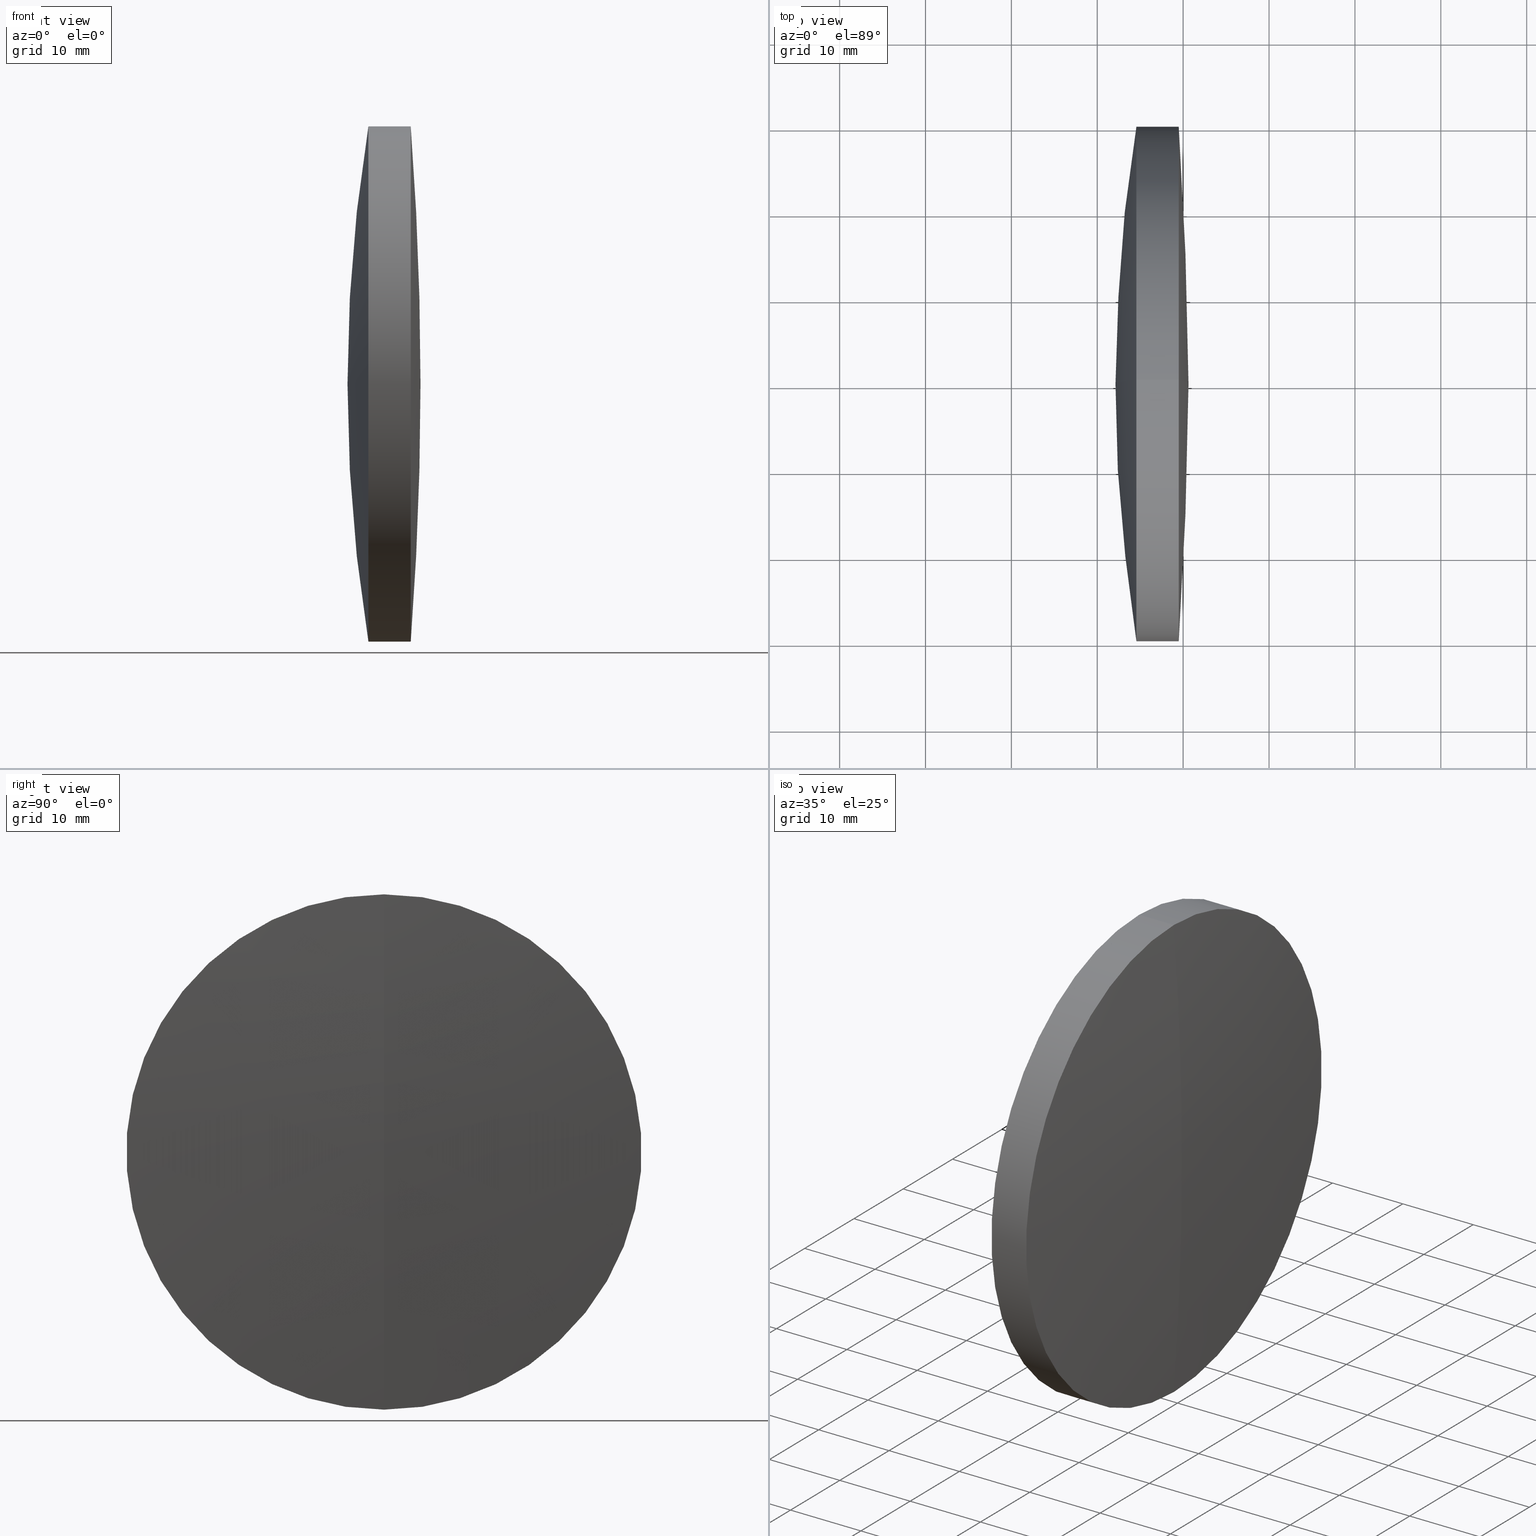
[diagram: canonical four-view strip — front | top / right | iso, engineering-drawing reading convention]
A machine part, canonical four-view strip (front | top / right | iso — engineering-drawing reading convention). The complete STEP part file that produces these views, byte-faithful:
ISO-10303-21;
HEADER;
FILE_DESCRIPTION (( 'STEP AP214' ),
    '1' );
FILE_NAME ('145098.STEP',
    '2019-05-28T02:26:08',
    ( 'user' ),
    ( '΢���й�' ),
    'SwSTEP 2.0',
    'SolidWorks 2016',
    '' );
FILE_SCHEMA (( 'AUTOMOTIVE_DESIGN' ));
ENDSEC;

DATA;
#1 = DIRECTION ( 'NONE',  ( 0.0000000000000000000, 0.0000000000000000000, 1.000000000000000000 ) ) ;
#2 = ORIENTED_EDGE ( 'NONE', *, *, #171, .F. ) ;
#3 = EDGE_CURVE ( 'NONE', #259, #210, #242, .T. ) ;
#4 = ORIENTED_EDGE ( 'NONE', *, *, #171, .T. ) ;
#5 = CARTESIAN_POINT ( 'NONE',  ( -55.97737444877426300, 0.0000000000000000000, 0.0000000000000000000 ) ) ;
#6 = DIRECTION ( 'NONE',  ( 0.0000000000000000000, 0.0000000000000000000, 1.000000000000000000 ) ) ;
#7 = EDGE_CURVE ( 'NONE', #15, #227, #206, .T. ) ;
#8 = EDGE_LOOP ( 'NONE', ( #78, #44, #138, #329 ) ) ;
#9 =( GEOMETRIC_REPRESENTATION_CONTEXT ( 3 ) GLOBAL_UNCERTAINTY_ASSIGNED_CONTEXT ( ( #257 ) ) GLOBAL_UNIT_ASSIGNED_CONTEXT ( ( #147, #79, #107 ) ) REPRESENTATION_CONTEXT ( 'NONE', 'WORKASPACE' ) );
#10 = ADVANCED_FACE ( 'NONE', ( #256 ), #296, .F. ) ;
#11 = AXIS2_PLACEMENT_3D ( 'NONE', #67, #30, #281 ) ;
#12 = COLOUR_RGB ( '',1.000000000000000000, 1.000000000000000000, 1.000000000000000000 ) ;
#13 = APPLICATION_PROTOCOL_DEFINITION ( 'draft international standard', 'automotive_design', 1998, #37 ) ;
#14 = ORIENTED_EDGE ( 'NONE', *, *, #132, .F. ) ;
#15 = VERTEX_POINT ( 'NONE', #129 ) ;
#16 = DIRECTION ( 'NONE',  ( -1.000000000000000000, -0.0000000000000000000, -0.0000000000000000000 ) ) ;
#17 = EDGE_CURVE ( 'NONE', #201, #33, #265, .T. ) ;
#18 = CARTESIAN_POINT ( 'NONE',  ( 216.1226255512254100, 0.0000000000000000000, 0.0000000000000000000 ) ) ;
#19 = SURFACE_STYLE_FILL_AREA ( #136 ) ;
#20 = DIRECTION ( 'NONE',  ( 0.0000000000000000000, 0.0000000000000000000, -1.000000000000000000 ) ) ;
#21 = CARTESIAN_POINT ( 'NONE',  ( 518.2226255512254100, 0.0000000000000000000, -3.517525629549590600E-015 ) ) ;
#22 = CARTESIAN_POINT ( 'NONE',  ( -0.5519199926577972300, 3.673940397442057600E-015, -29.99999999999998600 ) ) ;
#23 = CIRCLE ( 'NONE', #49, 186.1000000000000200 ) ;
#24 = MANIFOLD_SOLID_BREP ( '��ת1', #166 ) ;
#25 = EDGE_LOOP ( 'NONE', ( #205, #181, #287 ) ) ;
#26 = DIRECTION ( 'NONE',  ( 0.0000000000000000000, 0.0000000000000000000, 1.000000000000000000 ) ) ;
#27 = STYLED_ITEM ( 'NONE', ( #59 ), #131 ) ;
#28 = AXIS2_PLACEMENT_3D ( 'NONE', #120, #16, #295 ) ;
#29 = CYLINDRICAL_SURFACE ( 'NONE', #237, 29.99999999999999600 ) ;
#30 = DIRECTION ( 'NONE',  ( 0.0000000000000000000, 1.000000000000000000, 0.0000000000000000000 ) ) ;
#31 = CIRCLE ( 'NONE', #235, 29.99999999999995000 ) ;
#32 = CYLINDRICAL_SURFACE ( 'NONE', #312, 29.99999999999998600 ) ;
#33 = VERTEX_POINT ( 'NONE', #77 ) ;
#34 = ORIENTED_EDGE ( 'NONE', *, *, #241, .T. ) ;
#35 = PRODUCT ( '145098', '145098', '', ( #102 ) ) ;
#36 = FACE_OUTER_BOUND ( 'NONE', #174, .T. ) ;
#37 = APPLICATION_CONTEXT ( 'automotive_design' ) ;
#38 = ADVANCED_FACE ( 'NONE', ( #106 ), #73, .T. ) ;
#39 = DIRECTION ( 'NONE',  ( 0.0000000000000000000, 1.000000000000000000, 0.0000000000000000000 ) ) ;
#40 = SURFACE_STYLE_FILL_AREA ( #186 ) ;
#41 = ORIENTED_EDGE ( 'NONE', *, *, #47, .T. ) ;
#42 = CARTESIAN_POINT ( 'NONE',  ( 339.4863533443066800, 0.0000000000000000000, 0.0000000000000000000 ) ) ;
#43 = CIRCLE ( 'NONE', #64, 123.0000000000003000 ) ;
#44 = ORIENTED_EDGE ( 'NONE', *, *, #191, .T. ) ;
#45 = STYLED_ITEM ( 'NONE', ( #90 ), #112 ) ;
#46 = SURFACE_STYLE_USAGE ( .BOTH. , #290 ) ;
#47 = EDGE_CURVE ( 'NONE', #15, #231, #92, .T. ) ;
#48 = DIRECTION ( 'NONE',  ( 0.0000000000000000000, 0.0000000000000000000, 1.000000000000000000 ) ) ;
#49 = AXIS2_PLACEMENT_3D ( 'NONE', #274, #76, #269 ) ;
#50 = FILL_AREA_STYLE ('',( #347 ) ) ;
#51 = CARTESIAN_POINT ( 'NONE',  ( 124.5233095260452400, 0.0000000000000000000, 0.0000000000000000000 ) ) ;
#52 = VERTEX_POINT ( 'NONE', #142 ) ;
#53 = VERTEX_POINT ( 'NONE', #98 ) ;
#54 = AXIS2_PLACEMENT_3D ( 'NONE', #21, #100, #207 ) ;
#55 = FACE_OUTER_BOUND ( 'NONE', #345, .T. ) ;
#56 = CYLINDRICAL_SURFACE ( 'NONE', #224, 29.99999999999999600 ) ;
#57 = EDGE_CURVE ( 'NONE', #113, #63, #80, .T. ) ;
#58 = UNCERTAINTY_MEASURE_WITH_UNIT (LENGTH_MEASURE( 1.000000000000000100E-005 ), #192, 'distance_accuracy_value', 'NONE');
#59 = PRESENTATION_STYLE_ASSIGNMENT (( #127 ) ) ;
#60 = PRESENTATION_LAYER_ASSIGNMENT (  '', '', ( #45 ) ) ;
#61 = DIRECTION ( 'NONE',  ( -1.000000000000000000, -0.0000000000000000000, -0.0000000000000000000 ) ) ;
#62 = CIRCLE ( 'NONE', #141, 29.99999999999995000 ) ;
#63 = VERTEX_POINT ( 'NONE', #140 ) ;
#64 = AXIS2_PLACEMENT_3D ( 'NONE', #165, #334, #20 ) ;
#65 = CARTESIAN_POINT ( 'NONE',  ( 335.4079976636520000, 3.673940397442059200E-015, -29.99999999999999600 ) ) ;
#66 = DIRECTION ( 'NONE',  ( -1.000000000000000000, -0.0000000000000000000, -0.0000000000000000000 ) ) ;
#67 = CARTESIAN_POINT ( 'NONE',  ( 518.2226255512254100, 0.0000000000000000000, -3.517525629549590600E-015 ) ) ;
#68 = FACE_OUTER_BOUND ( 'NONE', #8, .T. ) ;
#69 = CLOSED_SHELL ( 'NONE', ( #204, #38, #10, #184, #255, #187 ) ) ;
#70 = DIRECTION ( 'NONE',  ( 0.0000000000000000000, 0.0000000000000000000, 1.000000000000000000 ) ) ;
#71 = FILL_AREA_STYLE_COLOUR ( '', #12 ) ;
#72 = CARTESIAN_POINT ( 'NONE',  ( -0.5519199926577972300, 0.0000000000000000000, 0.0000000000000000000 ) ) ;
#73 = CYLINDRICAL_SURFACE ( 'NONE', #325, 29.99999999999998600 ) ;
#74 = ADVANCED_FACE ( 'NONE', ( #68 ), #56, .T. ) ;
#75 = CARTESIAN_POINT ( 'NONE',  ( 335.4079976636520000, 0.0000000000000000000, 30.00000000000001100 ) ) ;
#76 = DIRECTION ( 'NONE',  ( 0.0000000000000000000, -1.000000000000000000, 0.0000000000000000000 ) ) ;
#77 = CARTESIAN_POINT ( 'NONE',  ( 332.1226255512253800, 0.0000000000000000000, 7.877812836516531800E-015 ) ) ;
#78 = ORIENTED_EDGE ( 'NONE', *, *, #164, .T. ) ;
#79 =( NAMED_UNIT ( * ) PLANE_ANGLE_UNIT ( ) SI_UNIT ( $, .RADIAN. ) );
#80 = CIRCLE ( 'NONE', #202, 30.00000000000002500 ) ;
#81 = CARTESIAN_POINT ( 'NONE',  ( -55.97737444877426300, 0.0000000000000000000, 0.0000000000000000000 ) ) ;
#82 =( NAMED_UNIT ( * ) PLANE_ANGLE_UNIT ( ) SI_UNIT ( $, .RADIAN. ) );
#83 = DIRECTION ( 'NONE',  ( -1.000000000000000000, -0.0000000000000000000, -0.0000000000000000000 ) ) ;
#84 = MECHANICAL_DESIGN_GEOMETRIC_PRESENTATION_REPRESENTATION (  '', ( #45 ), #101 ) ;
#85 = ORIENTED_EDGE ( 'NONE', *, *, #7, .F. ) ;
#86 = EDGE_CURVE ( 'NONE', #227, #231, #62, .T. ) ;
#87 = VERTEX_POINT ( 'NONE', #343 ) ;
#88 = ORIENTED_EDGE ( 'NONE', *, *, #57, .F. ) ;
#89 = AXIS2_PLACEMENT_3D ( 'NONE', #251, #220, #104 ) ;
#90 = PRESENTATION_STYLE_ASSIGNMENT (( #219 ) ) ;
#91 = AXIS2_PLACEMENT_3D ( 'NONE', #189, #133, #134 ) ;
#92 = CIRCLE ( 'NONE', #244, 396.6000000000000200 ) ;
#93 = ADVANCED_FACE ( 'NONE', ( #302 ), #29, .T. ) ;
#94 = CIRCLE ( 'NONE', #28, 30.00000000000002500 ) ;
#95 = SPHERICAL_SURFACE ( 'NONE', #229, 123.0000000000003000 ) ;
#96 =( NAMED_UNIT ( * ) SI_UNIT ( $, .STERADIAN. ) SOLID_ANGLE_UNIT ( ) );
#97 = EDGE_LOOP ( 'NONE', ( #85, #41, #230 ) ) ;
#98 = CARTESIAN_POINT ( 'NONE',  ( 339.1226255512257200, 0.0000000000000000000, 7.531577814756241600E-015 ) ) ;
#99 = DIRECTION ( 'NONE',  ( 0.0000000000000000000, 1.000000000000000000, 0.0000000000000000000 ) ) ;
#100 = DIRECTION ( 'NONE',  ( 0.0000000000000000000, 1.000000000000000000, 0.0000000000000000000 ) ) ;
#101 =( GEOMETRIC_REPRESENTATION_CONTEXT ( 3 ) GLOBAL_UNCERTAINTY_ASSIGNED_CONTEXT ( ( #58 ) ) GLOBAL_UNIT_ASSIGNED_CONTEXT ( ( #192, #338, #335 ) ) REPRESENTATION_CONTEXT ( 'NONE', 'WORKASPACE' ) );
#102 = PRODUCT_CONTEXT ( 'NONE', #162, 'mechanical' ) ;
#103 = DIRECTION ( 'NONE',  ( 0.0000000000000000000, 0.0000000000000000000, 1.000000000000000000 ) ) ;
#104 = DIRECTION ( 'NONE',  ( 0.0000000000000000000, -1.224646799147353200E-016, 1.000000000000000000 ) ) ;
#105 = SPHERICAL_SURFACE ( 'NONE', #54, 186.1000000000000200 ) ;
#106 = FACE_OUTER_BOUND ( 'NONE', #169, .T. ) ;
#107 =( NAMED_UNIT ( * ) SI_UNIT ( $, .STERADIAN. ) SOLID_ANGLE_UNIT ( ) );
#108 = EDGE_LOOP ( 'NONE', ( #144, #278, #200 ) ) ;
#109 = DIRECTION ( 'NONE',  ( 0.0000000000000000000, 0.0000000000000000000, 1.000000000000000000 ) ) ;
#110 = AXIS2_PLACEMENT_3D ( 'NONE', #291, #236, #1 ) ;
#111 = CIRCLE ( 'NONE', #110, 29.99999999999999600 ) ;
#112 = ADVANCED_BREP_SHAPE_REPRESENTATION ( '145098', ( #24, #131, #214 ), #342 ) ;
#113 = VERTEX_POINT ( 'NONE', #75 ) ;
#114 = VECTOR ( 'NONE', #176, 1000.000000000000000 ) ;
#115 = ORIENTED_EDGE ( 'NONE', *, *, #86, .T. ) ;
#116 = ORIENTED_EDGE ( 'NONE', *, *, #241, .F. ) ;
#117 = ADVANCED_FACE ( 'NONE', ( #36 ), #105, .T. ) ;
#118 = PRODUCT_DEFINITION_SHAPE ( 'NONE', 'NONE',  #143 ) ;
#119 = DIRECTION ( 'NONE',  ( -1.000000000000000000, -0.0000000000000000000, -0.0000000000000000000 ) ) ;
#120 = CARTESIAN_POINT ( 'NONE',  ( 335.4079976636520000, 0.0000000000000000000, 0.0000000000000000000 ) ) ;
#121 = ORIENTED_EDGE ( 'NONE', *, *, #156, .F. ) ;
#122 = DIRECTION ( 'NONE',  ( 0.0000000000000000000, 1.000000000000000000, 0.0000000000000000000 ) ) ;
#123 = DIRECTION ( 'NONE',  ( 0.0000000000000000000, -1.000000000000000000, 0.0000000000000000000 ) ) ;
#124 = AXIS2_PLACEMENT_3D ( 'NONE', #81, #247, #26 ) ;
#125 = LINE ( 'NONE', #275, #114 ) ;
#126 = ORIENTED_EDGE ( 'NONE', *, *, #203, .T. ) ;
#127 = SURFACE_STYLE_USAGE ( .BOTH. , #317 ) ;
#128 = ORIENTED_EDGE ( 'NONE', *, *, #288, .T. ) ;
#129 = CARTESIAN_POINT ( 'NONE',  ( 340.6226255512257200, 0.0000000000000000000, 2.428474602709201300E-014 ) ) ;
#130 = CARTESIAN_POINT ( 'NONE',  ( 216.1226255512254100, 0.0000000000000000000, 0.0000000000000000000 ) ) ;
#131 = MANIFOLD_SOLID_BREP ( '��ת3', #69 ) ;
#132 = EDGE_CURVE ( 'NONE', #227, #63, #306, .T. ) ;
#133 = DIRECTION ( 'NONE',  ( -0.0000000000000000000, 1.000000000000000000, 1.224646799147353200E-016 ) ) ;
#134 = DIRECTION ( 'NONE',  ( 0.0000000000000000000, -1.224646799147353500E-016, 1.000000000000000000 ) ) ;
#135 = CIRCLE ( 'NONE', #321, 29.99999999999999600 ) ;
#136 = FILL_AREA_STYLE ('',( #179 ) ) ;
#137 = EDGE_LOOP ( 'NONE', ( #264, #126, #320 ) ) ;
#138 = ORIENTED_EDGE ( 'NONE', *, *, #324, .F. ) ;
#139 = DIRECTION ( 'NONE',  ( 0.0000000000000000000, -1.000000000000000000, 0.0000000000000000000 ) ) ;
#140 = CARTESIAN_POINT ( 'NONE',  ( 335.4079976636520000, 3.673940397442060800E-015, -30.00000000000001100 ) ) ;
#141 = AXIS2_PLACEMENT_3D ( 'NONE', #246, #183, #282 ) ;
#142 = CARTESIAN_POINT ( 'NONE',  ( 335.4079976636520000, 0.0000000000000000000, 29.99999999999999600 ) ) ;
#143 = PRODUCT_DEFINITION ( 'δ֪', '', #154, #326 ) ;
#144 = ORIENTED_EDGE ( 'NONE', *, *, #284, .F. ) ;
#145 = ORIENTED_EDGE ( 'NONE', *, *, #17, .F. ) ;
#146 = AXIS2_PLACEMENT_3D ( 'NONE', #226, #83, #70 ) ;
#147 =( LENGTH_UNIT ( ) NAMED_UNIT ( * ) SI_UNIT ( .MILLI., .METRE. ) );
#148 = DIRECTION ( 'NONE',  ( -1.000000000000000000, -0.0000000000000000000, -0.0000000000000000000 ) ) ;
#149 = ORIENTED_EDGE ( 'NONE', *, *, #47, .F. ) ;
#150 = CARTESIAN_POINT ( 'NONE',  ( 216.1226255512254100, 0.0000000000000000000, 0.0000000000000000000 ) ) ;
#151 = CARTESIAN_POINT ( 'NONE',  ( 0.0000000000000000000, 0.0000000000000000000, 0.0000000000000000000 ) ) ;
#152 = CARTESIAN_POINT ( 'NONE',  ( 124.5233095260452400, 0.0000000000000000000, 0.0000000000000000000 ) ) ;
#153 =( LENGTH_UNIT ( ) NAMED_UNIT ( * ) SI_UNIT ( .MILLI., .METRE. ) );
#154 = PRODUCT_DEFINITION_FORMATION_WITH_SPECIFIED_SOURCE ( '�κ�', '', #35, .NOT_KNOWN. ) ;
#155 = PRESENTATION_STYLE_ASSIGNMENT (( #46 ) ) ;
#156 = EDGE_CURVE ( 'NONE', #201, #87, #172, .T. ) ;
#157 = CARTESIAN_POINT ( 'NONE',  ( 216.1226255512254100, 0.0000000000000000000, 0.0000000000000000000 ) ) ;
#158 = AXIS2_PLACEMENT_3D ( 'NONE', #294, #139, #285 ) ;
#159 = DIRECTION ( 'NONE',  ( 0.0000000000000000000, 1.000000000000000000, 0.0000000000000000000 ) ) ;
#160 = ORIENTED_EDGE ( 'NONE', *, *, #284, .T. ) ;
#161 = ORIENTED_EDGE ( 'NONE', *, *, #197, .T. ) ;
#162 = APPLICATION_CONTEXT ( 'automotive_design' ) ;
#163 =( GEOMETRIC_REPRESENTATION_CONTEXT ( 3 ) GLOBAL_UNCERTAINTY_ASSIGNED_CONTEXT ( ( #217 ) ) GLOBAL_UNIT_ASSIGNED_CONTEXT ( ( #310, #249, #96 ) ) REPRESENTATION_CONTEXT ( 'NONE', 'WORKASPACE' ) );
#164 = EDGE_CURVE ( 'NONE', #52, #210, #168, .T. ) ;
#165 = CARTESIAN_POINT ( 'NONE',  ( 216.1226255512254100, 0.0000000000000000000, 0.0000000000000000000 ) ) ;
#166 = CLOSED_SHELL ( 'NONE', ( #271, #74, #117, #332, #93, #304 ) ) ;
#167 = MECHANICAL_DESIGN_GEOMETRIC_PRESENTATION_REPRESENTATION (  '', ( #243 ), #9 ) ;
#168 = CIRCLE ( 'NONE', #146, 29.99999999999999600 ) ;
#169 = EDGE_LOOP ( 'NONE', ( #4, #250, #88, #194 ) ) ;
#170 = EDGE_CURVE ( 'NONE', #63, #113, #94, .T. ) ;
#171 = EDGE_CURVE ( 'NONE', #231, #227, #31, .T. ) ;
#172 = CIRCLE ( 'NONE', #283, 29.99999999999999600 ) ;
#173 = DIRECTION ( 'NONE',  ( -1.000000000000000000, -0.0000000000000000000, -0.0000000000000000000 ) ) ;
#174 = EDGE_LOOP ( 'NONE', ( #307, #240, #116 ) ) ;
#175 = CARTESIAN_POINT ( 'NONE',  ( -0.5519199926577972300, 0.0000000000000000000, 0.0000000000000000000 ) ) ;
#176 = DIRECTION ( 'NONE',  ( -1.000000000000000000, -0.0000000000000000000, -0.0000000000000000000 ) ) ;
#177 = CARTESIAN_POINT ( 'NONE',  ( 339.4863533443066800, 0.0000000000000000000, 29.99999999999995000 ) ) ;
#178 = COLOUR_RGB ( '',1.000000000000000000, 1.000000000000000000, 1.000000000000000000 ) ;
#179 = FILL_AREA_STYLE_COLOUR ( '', #178 ) ;
#180 = PRESENTATION_LAYER_ASSIGNMENT (  '', '', ( #27 ) ) ;
#181 = ORIENTED_EDGE ( 'NONE', *, *, #3, .T. ) ;
#182 = APPLICATION_PROTOCOL_DEFINITION ( 'draft international standard', 'automotive_design', 1998, #162 ) ;
#183 = DIRECTION ( 'NONE',  ( -1.000000000000000000, -0.0000000000000000000, -0.0000000000000000000 ) ) ;
#184 = ADVANCED_FACE ( 'NONE', ( #55 ), #253, .F. ) ;
#185 = AXIS2_PLACEMENT_3D ( 'NONE', #341, #122, #215 ) ;
#186 = FILL_AREA_STYLE ('',( #71 ) ) ;
#187 = ADVANCED_FACE ( 'NONE', ( #248 ), #328, .T. ) ;
#188 = SPHERICAL_SURFACE ( 'NONE', #124, 396.6000000000000200 ) ;
#189 = CARTESIAN_POINT ( 'NONE',  ( 216.1226255512254100, 0.0000000000000000000, 0.0000000000000000000 ) ) ;
#190 = ORIENTED_EDGE ( 'NONE', *, *, #327, .T. ) ;
#191 = EDGE_CURVE ( 'NONE', #210, #201, #125, .T. ) ;
#192 =( LENGTH_UNIT ( ) NAMED_UNIT ( * ) SI_UNIT ( .MILLI., .METRE. ) );
#193 = CIRCLE ( 'NONE', #158, 123.0000000000003000 ) ;
#194 = ORIENTED_EDGE ( 'NONE', *, *, #197, .F. ) ;
#195 = CARTESIAN_POINT ( 'NONE',  ( 518.2226255512254100, 0.0000000000000000000, -3.517525629549590600E-015 ) ) ;
#196 = EDGE_LOOP ( 'NONE', ( #149, #245, #2 ) ) ;
#197 = EDGE_CURVE ( 'NONE', #231, #113, #331, .T. ) ;
#198 = ORIENTED_EDGE ( 'NONE', *, *, #57, .T. ) ;
#199 = FACE_OUTER_BOUND ( 'NONE', #209, .T. ) ;
#200 = ORIENTED_EDGE ( 'NONE', *, *, #170, .T. ) ;
#201 = VERTEX_POINT ( 'NONE', #254 ) ;
#202 = AXIS2_PLACEMENT_3D ( 'NONE', #318, #260, #6 ) ;
#203 = EDGE_CURVE ( 'NONE', #259, #52, #43, .T. ) ;
#204 = ADVANCED_FACE ( 'NONE', ( #333 ), #188, .T. ) ;
#205 = ORIENTED_EDGE ( 'NONE', *, *, #203, .F. ) ;
#206 = CIRCLE ( 'NONE', #89, 396.6000000000000200 ) ;
#207 = DIRECTION ( 'NONE',  ( 0.0000000000000000000, 0.0000000000000000000, 1.000000000000000000 ) ) ;
#208 = SPHERICAL_SURFACE ( 'NONE', #300, 123.0000000000003000 ) ;
#209 = EDGE_LOOP ( 'NONE', ( #14, #115, #161, #340 ) ) ;
#210 = VERTEX_POINT ( 'NONE', #65 ) ;
#211 = DIRECTION ( 'NONE',  ( -0.0000000000000000000, 1.000000000000000000, 1.224646799147353200E-016 ) ) ;
#212 = FACE_OUTER_BOUND ( 'NONE', #137, .T. ) ;
#213 = DIRECTION ( 'NONE',  ( 0.0000000000000000000, -1.224646799147353500E-016, 1.000000000000000000 ) ) ;
#214 = AXIS2_PLACEMENT_3D ( 'NONE', #151, #346, #315 ) ;
#215 = DIRECTION ( 'NONE',  ( 0.0000000000000000000, 0.0000000000000000000, 1.000000000000000000 ) ) ;
#216 = DIRECTION ( 'NONE',  ( -1.000000000000000000, -0.0000000000000000000, -0.0000000000000000000 ) ) ;
#217 = UNCERTAINTY_MEASURE_WITH_UNIT (LENGTH_MEASURE( 1.000000000000000100E-005 ), #310, 'distance_accuracy_value', 'NONE');
#218 = FACE_OUTER_BOUND ( 'NONE', #25, .T. ) ;
#219 = SURFACE_STYLE_USAGE ( .BOTH. , #292 ) ;
#220 = DIRECTION ( 'NONE',  ( -0.0000000000000000000, 1.000000000000000000, 1.224646799147353200E-016 ) ) ;
#221 = CARTESIAN_POINT ( 'NONE',  ( 339.1226255512257200, 0.0000000000000000000, 7.531577814756241600E-015 ) ) ;
#222 = EDGE_LOOP ( 'NONE', ( #330, #190, #128, #121 ) ) ;
#223 = DIRECTION ( 'NONE',  ( 0.0000000000000000000, 0.0000000000000000000, 1.000000000000000000 ) ) ;
#224 = AXIS2_PLACEMENT_3D ( 'NONE', #51, #277, #48 ) ;
#225 = DIRECTION ( 'NONE',  ( 0.0000000000000000000, -1.224646799147353000E-016, 1.000000000000000000 ) ) ;
#226 = CARTESIAN_POINT ( 'NONE',  ( 335.4079976636520000, 0.0000000000000000000, 0.0000000000000000000 ) ) ;
#227 = VERTEX_POINT ( 'NONE', #262 ) ;
#228 = UNCERTAINTY_MEASURE_WITH_UNIT (LENGTH_MEASURE( 1.000000000000000100E-005 ), #153, 'distance_accuracy_value', 'NONE');
#229 = AXIS2_PLACEMENT_3D ( 'NONE', #157, #322, #286 ) ;
#230 = ORIENTED_EDGE ( 'NONE', *, *, #86, .F. ) ;
#231 = VERTEX_POINT ( 'NONE', #177 ) ;
#232 =( NAMED_UNIT ( * ) SI_UNIT ( $, .STERADIAN. ) SOLID_ANGLE_UNIT ( ) );
#233 = DIRECTION ( 'NONE',  ( 0.0000000000000000000, 0.0000000000000000000, 1.000000000000000000 ) ) ;
#234 = CARTESIAN_POINT ( 'NONE',  ( 334.5565971191825300, 0.0000000000000000000, 0.0000000000000000000 ) ) ;
#235 = AXIS2_PLACEMENT_3D ( 'NONE', #42, #66, #233 ) ;
#236 = DIRECTION ( 'NONE',  ( -1.000000000000000000, -0.0000000000000000000, -0.0000000000000000000 ) ) ;
#237 = AXIS2_PLACEMENT_3D ( 'NONE', #152, #314, #308 ) ;
#238 = DIRECTION ( 'NONE',  ( 0.0000000000000000000, 0.0000000000000000000, -1.000000000000000000 ) ) ;
#239 = VECTOR ( 'NONE', #272, 1000.000000000000000 ) ;
#240 = ORIENTED_EDGE ( 'NONE', *, *, #17, .T. ) ;
#241 = EDGE_CURVE ( 'NONE', #87, #33, #23, .T. ) ;
#242 = CIRCLE ( 'NONE', #301, 123.0000000000003000 ) ;
#243 = STYLED_ITEM ( 'NONE', ( #155 ), #24 ) ;
#244 = AXIS2_PLACEMENT_3D ( 'NONE', #5, #123, #238 ) ;
#245 = ORIENTED_EDGE ( 'NONE', *, *, #7, .T. ) ;
#246 = CARTESIAN_POINT ( 'NONE',  ( 339.4863533443066800, 0.0000000000000000000, 0.0000000000000000000 ) ) ;
#247 = DIRECTION ( 'NONE',  ( 0.0000000000000000000, 1.000000000000000000, 0.0000000000000000000 ) ) ;
#248 = FACE_OUTER_BOUND ( 'NONE', #97, .T. ) ;
#249 =( NAMED_UNIT ( * ) PLANE_ANGLE_UNIT ( ) SI_UNIT ( $, .RADIAN. ) );
#250 = ORIENTED_EDGE ( 'NONE', *, *, #132, .T. ) ;
#251 = CARTESIAN_POINT ( 'NONE',  ( -55.97737444877426300, 0.0000000000000000000, 0.0000000000000000000 ) ) ;
#252 = PRODUCT_RELATED_PRODUCT_CATEGORY ( 'part', '', ( #35 ) ) ;
#253 = SPHERICAL_SURFACE ( 'NONE', #263, 123.0000000000003000 ) ;
#254 = CARTESIAN_POINT ( 'NONE',  ( 334.5565971191825300, 3.673940397442056800E-015, -29.99999999999998200 ) ) ;
#255 = ADVANCED_FACE ( 'NONE', ( #199 ), #32, .T. ) ;
#256 = FACE_OUTER_BOUND ( 'NONE', #108, .T. ) ;
#257 = UNCERTAINTY_MEASURE_WITH_UNIT (LENGTH_MEASURE( 1.000000000000000100E-005 ), #147, 'distance_accuracy_value', 'NONE');
#258 = SPHERICAL_SURFACE ( 'NONE', #11, 186.1000000000000200 ) ;
#259 = VERTEX_POINT ( 'NONE', #221 ) ;
#260 = DIRECTION ( 'NONE',  ( -1.000000000000000000, -0.0000000000000000000, -0.0000000000000000000 ) ) ;
#261 = MECHANICAL_DESIGN_GEOMETRIC_PRESENTATION_REPRESENTATION (  '', ( #27 ), #163 ) ;
#262 = CARTESIAN_POINT ( 'NONE',  ( 339.4863533443066800, 3.673940397442055200E-015, -29.99999999999995000 ) ) ;
#263 = AXIS2_PLACEMENT_3D ( 'NONE', #150, #99, #336 ) ;
#264 = ORIENTED_EDGE ( 'NONE', *, *, #3, .F. ) ;
#265 = CIRCLE ( 'NONE', #297, 186.1000000000000200 ) ;
#266 = VECTOR ( 'NONE', #216, 1000.000000000000000 ) ;
#267 = ORIENTED_EDGE ( 'NONE', *, *, #156, .T. ) ;
#268 = PRESENTATION_LAYER_ASSIGNMENT (  '', '', ( #243 ) ) ;
#269 = DIRECTION ( 'NONE',  ( 0.0000000000000000000, 0.0000000000000000000, -1.000000000000000000 ) ) ;
#270 = SURFACE_STYLE_FILL_AREA ( #50 ) ;
#271 = ADVANCED_FACE ( 'NONE', ( #218 ), #95, .T. ) ;
#272 = DIRECTION ( 'NONE',  ( -1.000000000000000000, -0.0000000000000000000, -0.0000000000000000000 ) ) ;
#273 = EDGE_CURVE ( 'NONE', #53, #63, #309, .T. ) ;
#274 = CARTESIAN_POINT ( 'NONE',  ( 518.2226255512254100, 0.0000000000000000000, -3.517525629549590600E-015 ) ) ;
#275 = CARTESIAN_POINT ( 'NONE',  ( 124.5233095260452400, 3.673940397442059200E-015, -29.99999999999999600 ) ) ;
#276 = LINE ( 'NONE', #313, #266 ) ;
#277 = DIRECTION ( 'NONE',  ( -1.000000000000000000, -0.0000000000000000000, -0.0000000000000000000 ) ) ;
#278 = ORIENTED_EDGE ( 'NONE', *, *, #273, .T. ) ;
#279 = CARTESIAN_POINT ( 'NONE',  ( 335.4079976636520000, 0.0000000000000000000, 0.0000000000000000000 ) ) ;
#280 = CARTESIAN_POINT ( 'NONE',  ( 216.1226255512254100, 0.0000000000000000000, 0.0000000000000000000 ) ) ;
#281 = DIRECTION ( 'NONE',  ( 0.0000000000000000000, 0.0000000000000000000, 1.000000000000000000 ) ) ;
#282 = DIRECTION ( 'NONE',  ( 0.0000000000000000000, 0.0000000000000000000, 1.000000000000000000 ) ) ;
#283 = AXIS2_PLACEMENT_3D ( 'NONE', #234, #148, #289 ) ;
#284 = EDGE_CURVE ( 'NONE', #53, #113, #193, .T. ) ;
#285 = DIRECTION ( 'NONE',  ( 0.0000000000000000000, 0.0000000000000000000, -1.000000000000000000 ) ) ;
#286 = DIRECTION ( 'NONE',  ( 0.0000000000000000000, 0.0000000000000000000, 1.000000000000000000 ) ) ;
#287 = ORIENTED_EDGE ( 'NONE', *, *, #164, .F. ) ;
#288 = EDGE_CURVE ( 'NONE', #52, #87, #276, .T. ) ;
#289 = DIRECTION ( 'NONE',  ( 0.0000000000000000000, 0.0000000000000000000, 1.000000000000000000 ) ) ;
#290 = SURFACE_SIDE_STYLE ('',( #270 ) ) ;
#291 = CARTESIAN_POINT ( 'NONE',  ( 334.5565971191825300, 0.0000000000000000000, 0.0000000000000000000 ) ) ;
#292 = SURFACE_SIDE_STYLE ('',( #19 ) ) ;
#293 = DIRECTION ( 'NONE',  ( -0.0000000000000000000, 1.000000000000000000, 1.224646799147353200E-016 ) ) ;
#294 = CARTESIAN_POINT ( 'NONE',  ( 216.1226255512254100, 0.0000000000000000000, 0.0000000000000000000 ) ) ;
#295 = DIRECTION ( 'NONE',  ( 0.0000000000000000000, 0.0000000000000000000, 1.000000000000000000 ) ) ;
#296 = SPHERICAL_SURFACE ( 'NONE', #303, 123.0000000000003000 ) ;
#297 = AXIS2_PLACEMENT_3D ( 'NONE', #195, #293, #225 ) ;
#298 = SHAPE_DEFINITION_REPRESENTATION ( #118, #112 ) ;
#299 = COLOUR_RGB ( '',1.000000000000000000, 1.000000000000000000, 1.000000000000000000 ) ;
#300 = AXIS2_PLACEMENT_3D ( 'NONE', #130, #159, #323 ) ;
#301 = AXIS2_PLACEMENT_3D ( 'NONE', #280, #211, #213 ) ;
#302 = FACE_OUTER_BOUND ( 'NONE', #222, .T. ) ;
#303 = AXIS2_PLACEMENT_3D ( 'NONE', #18, #39, #103 ) ;
#304 = ADVANCED_FACE ( 'NONE', ( #212 ), #208, .T. ) ;
#305 = DIRECTION ( 'NONE',  ( 0.0000000000000000000, 0.0000000000000000000, 1.000000000000000000 ) ) ;
#306 = LINE ( 'NONE', #22, #239 ) ;
#307 = ORIENTED_EDGE ( 'NONE', *, *, #324, .T. ) ;
#308 = DIRECTION ( 'NONE',  ( 0.0000000000000000000, 0.0000000000000000000, 1.000000000000000000 ) ) ;
#309 = CIRCLE ( 'NONE', #91, 123.0000000000003000 ) ;
#310 =( LENGTH_UNIT ( ) NAMED_UNIT ( * ) SI_UNIT ( .MILLI., .METRE. ) );
#311 = EDGE_LOOP ( 'NONE', ( #145, #267, #34 ) ) ;
#312 = AXIS2_PLACEMENT_3D ( 'NONE', #175, #61, #305 ) ;
#313 = CARTESIAN_POINT ( 'NONE',  ( 124.5233095260452400, 0.0000000000000000000, 29.99999999999999600 ) ) ;
#314 = DIRECTION ( 'NONE',  ( -1.000000000000000000, -0.0000000000000000000, -0.0000000000000000000 ) ) ;
#315 = DIRECTION ( 'NONE',  ( 1.000000000000000000, 0.0000000000000000000, 0.0000000000000000000 ) ) ;
#316 = CARTESIAN_POINT ( 'NONE',  ( -0.5519199926577972300, 0.0000000000000000000, 29.99999999999998600 ) ) ;
#317 = SURFACE_SIDE_STYLE ('',( #40 ) ) ;
#318 = CARTESIAN_POINT ( 'NONE',  ( 335.4079976636520000, 0.0000000000000000000, 0.0000000000000000000 ) ) ;
#319 = VECTOR ( 'NONE', #344, 1000.000000000000000 ) ;
#320 = ORIENTED_EDGE ( 'NONE', *, *, #327, .F. ) ;
#321 = AXIS2_PLACEMENT_3D ( 'NONE', #279, #119, #223 ) ;
#322 = DIRECTION ( 'NONE',  ( 0.0000000000000000000, 1.000000000000000000, 0.0000000000000000000 ) ) ;
#323 = DIRECTION ( 'NONE',  ( 0.0000000000000000000, 0.0000000000000000000, 1.000000000000000000 ) ) ;
#324 = EDGE_CURVE ( 'NONE', #87, #201, #111, .T. ) ;
#325 = AXIS2_PLACEMENT_3D ( 'NONE', #72, #173, #109 ) ;
#326 = PRODUCT_DEFINITION_CONTEXT ( 'detailed design', #37, 'design' ) ;
#327 = EDGE_CURVE ( 'NONE', #210, #52, #135, .T. ) ;
#328 = SPHERICAL_SURFACE ( 'NONE', #185, 396.6000000000000200 ) ;
#329 = ORIENTED_EDGE ( 'NONE', *, *, #288, .F. ) ;
#330 = ORIENTED_EDGE ( 'NONE', *, *, #191, .F. ) ;
#331 = LINE ( 'NONE', #316, #319 ) ;
#332 = ADVANCED_FACE ( 'NONE', ( #337 ), #258, .T. ) ;
#333 = FACE_OUTER_BOUND ( 'NONE', #196, .T. ) ;
#334 = DIRECTION ( 'NONE',  ( 0.0000000000000000000, -1.000000000000000000, 0.0000000000000000000 ) ) ;
#335 =( NAMED_UNIT ( * ) SI_UNIT ( $, .STERADIAN. ) SOLID_ANGLE_UNIT ( ) );
#336 = DIRECTION ( 'NONE',  ( 0.0000000000000000000, 0.0000000000000000000, 1.000000000000000000 ) ) ;
#337 = FACE_OUTER_BOUND ( 'NONE', #311, .T. ) ;
#338 =( NAMED_UNIT ( * ) PLANE_ANGLE_UNIT ( ) SI_UNIT ( $, .RADIAN. ) );
#339 = ORIENTED_EDGE ( 'NONE', *, *, #273, .F. ) ;
#340 = ORIENTED_EDGE ( 'NONE', *, *, #170, .F. ) ;
#341 = CARTESIAN_POINT ( 'NONE',  ( -55.97737444877426300, 0.0000000000000000000, 0.0000000000000000000 ) ) ;
#342 =( GEOMETRIC_REPRESENTATION_CONTEXT ( 3 ) GLOBAL_UNCERTAINTY_ASSIGNED_CONTEXT ( ( #228 ) ) GLOBAL_UNIT_ASSIGNED_CONTEXT ( ( #153, #82, #232 ) ) REPRESENTATION_CONTEXT ( 'NONE', 'WORKASPACE' ) );
#343 = CARTESIAN_POINT ( 'NONE',  ( 334.5565971191825300, 0.0000000000000000000, 29.99999999999997900 ) ) ;
#344 = DIRECTION ( 'NONE',  ( -1.000000000000000000, -0.0000000000000000000, -0.0000000000000000000 ) ) ;
#345 = EDGE_LOOP ( 'NONE', ( #339, #160, #198 ) ) ;
#346 = DIRECTION ( 'NONE',  ( 0.0000000000000000000, 0.0000000000000000000, 1.000000000000000000 ) ) ;
#347 = FILL_AREA_STYLE_COLOUR ( '', #299 ) ;
ENDSEC;
END-ISO-10303-21;
